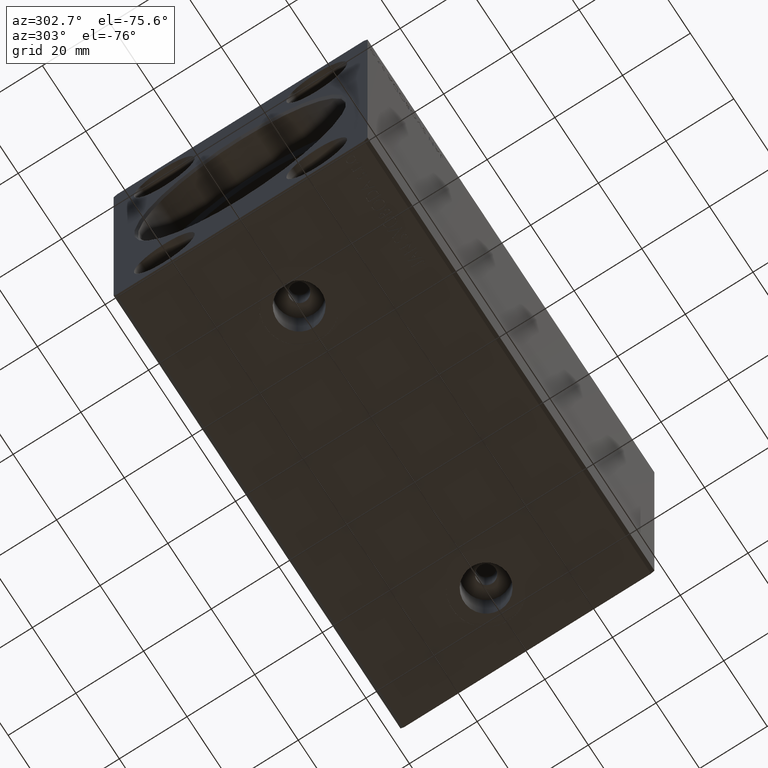
[diagram: clean part render]
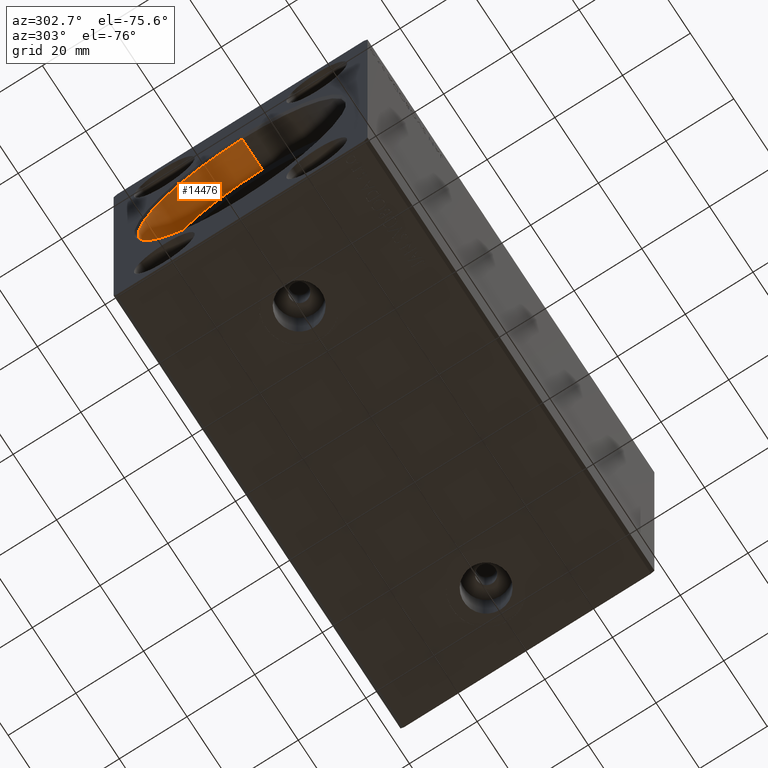
[diagram: same view with one face highlighted and labeled with its STEP entity id]
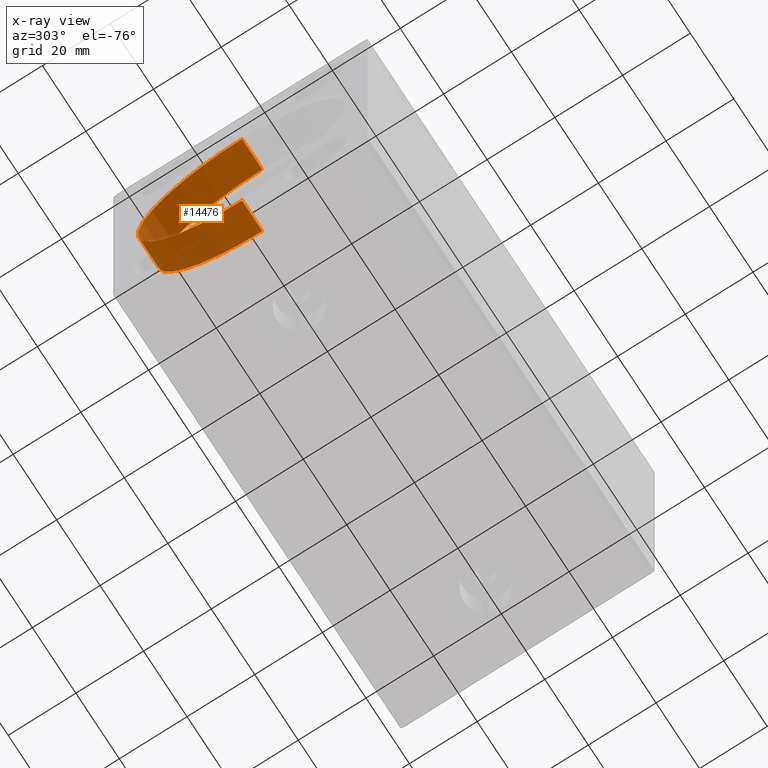
[diagram: x-ray of the same camera — body ghosted, the highlighted face saturated]
A machine part, auxiliary view. The second image highlights one B-rep face of the part: STEP entity #14476.
The next image is the same camera in x-ray: the body ghosted, the highlighted face saturated — about 17% of this face is hidden behind the body in this view.
In plain terms, the highlighted cylindrical surface (partial cylindrical patch) has radius 30.75 mm, axis along (-1, -0, -0).
Its self-contained STEP definition (entity closure, byte-faithful):
#267 = AXIS2_PLACEMENT_3D ( 'NONE', #34434, #40693, #2228 ) ;
#1229 = CYLINDRICAL_SURFACE ( 'NONE', #10606, 30.75000000000000355 ) ;
#2131 = EDGE_CURVE ( 'NONE', #6628, #24924, #19394, .T. ) ;
#2228 = DIRECTION ( 'NONE',  ( 0.000000000000000000, 0.000000000000000000, -1.000000000000000000 ) ) ;
#6628 = VERTEX_POINT ( 'NONE', #35895 ) ;
#8366 = CARTESIAN_POINT ( 'NONE',  ( 10.00000000000000000, 0.000000000000000000, 0.000000000000000000 ) ) ;
#9319 = DIRECTION ( 'NONE',  ( -1.000000000000000000, -0.000000000000000000, -0.000000000000000000 ) ) ;
#10606 = AXIS2_PLACEMENT_3D ( 'NONE', #33438, #17953, #41169 ) ;
#10919 = VERTEX_POINT ( 'NONE', #20464 ) ;
#11522 = EDGE_CURVE ( 'NONE', #10919, #31333, #34550, .T. ) ;
#13883 = EDGE_LOOP ( 'NONE', ( #25729, #42430, #37117, #35793 ) ) ;
#14476 = ADVANCED_FACE ( 'NONE', ( #30639 ), #1229, .F. ) ;
#15013 = DIRECTION ( 'NONE',  ( -1.000000000000000000, 0.000000000000000000, 0.000000000000000000 ) ) ;
#15933 = AXIS2_PLACEMENT_3D ( 'NONE', #8366, #15013, #21700 ) ;
#17953 = DIRECTION ( 'NONE',  ( -1.000000000000000000, -0.000000000000000000, -0.000000000000000000 ) ) ;
#19394 = CIRCLE ( 'NONE', #15933, 30.75000000000000355 ) ;
#20464 = CARTESIAN_POINT ( 'NONE',  ( 0.7000000000000234923, 0.000000000000000000, 30.75000000000000355 ) ) ;
#21078 = VECTOR ( 'NONE', #32773, 1000.000000000000000 ) ;
#21700 = DIRECTION ( 'NONE',  ( 0.000000000000000000, 0.000000000000000000, 1.000000000000000000 ) ) ;
#22072 = LINE ( 'NONE', #31931, #21078 ) ;
#24924 = VERTEX_POINT ( 'NONE', #35749 ) ;
#25729 = ORIENTED_EDGE ( 'NONE', *, *, #27348, .F. ) ;
#27348 = EDGE_CURVE ( 'NONE', #24924, #31333, #22072, .T. ) ;
#27594 = EDGE_CURVE ( 'NONE', #6628, #10919, #28877, .T. ) ;
#28877 = LINE ( 'NONE', #29090, #30022 ) ;
#29090 = CARTESIAN_POINT ( 'NONE',  ( 10.00000000000000000, 0.000000000000000000, 30.75000000000000355 ) ) ;
#30022 = VECTOR ( 'NONE', #9319, 1000.000000000000000 ) ;
#30639 = FACE_OUTER_BOUND ( 'NONE', #13883, .T. ) ;
#31333 = VERTEX_POINT ( 'NONE', #35115 ) ;
#31931 = CARTESIAN_POINT ( 'NONE',  ( 10.00000000000000000, 3.765788907378111328E-15, -30.75000000000000355 ) ) ;
#32773 = DIRECTION ( 'NONE',  ( -1.000000000000000000, -0.000000000000000000, -0.000000000000000000 ) ) ;
#33438 = CARTESIAN_POINT ( 'NONE',  ( 10.00000000000000000, 0.000000000000000000, 0.000000000000000000 ) ) ;
#34434 = CARTESIAN_POINT ( 'NONE',  ( 0.7000000000000234923, 0.000000000000000000, 0.000000000000000000 ) ) ;
#34550 = CIRCLE ( 'NONE', #267, 30.75000000000000355 ) ;
#35115 = CARTESIAN_POINT ( 'NONE',  ( 0.7000000000000234923, 3.765788907378111328E-15, -30.75000000000000355 ) ) ;
#35749 = CARTESIAN_POINT ( 'NONE',  ( 10.00000000000000000, 3.765788907378111328E-15, -30.75000000000000355 ) ) ;
#35793 = ORIENTED_EDGE ( 'NONE', *, *, #11522, .T. ) ;
#35895 = CARTESIAN_POINT ( 'NONE',  ( 10.00000000000000000, 0.000000000000000000, 30.75000000000000355 ) ) ;
#37117 = ORIENTED_EDGE ( 'NONE', *, *, #27594, .T. ) ;
#40693 = DIRECTION ( 'NONE',  ( -1.000000000000000000, 0.000000000000000000, 0.000000000000000000 ) ) ;
#41169 = DIRECTION ( 'NONE',  ( 0.000000000000000000, 0.000000000000000000, 1.000000000000000000 ) ) ;
#42430 = ORIENTED_EDGE ( 'NONE', *, *, #2131, .F. ) ;